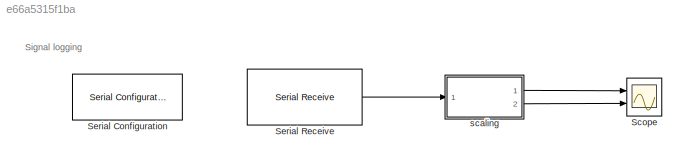
MODEL slx_e66a5315f1ba
KIND model
CONFIG AbsTol = auto
CONFIG EnableMultiTasking = on
CONFIG FixedStep = 1e-6
CONFIG MaxStep = auto
CONFIG MinStep = auto
CONFIG RelTol = 1e-3
CONFIG SampleTimeConstraint = Unconstrained
CONFIG Solver = FixedStepDiscrete
CONFIG SolverName = FixedStepDiscrete
CONFIG StartTime = 0.0
CONFIG StopTime = Inf
BLOCK [Scope] Scope
  DefaultConfigurationName = spbscopes.TimeScopeBlockCfg
  Floating = off
  NumInputPorts = 2
  Ports = [2]
  ScopeSpecificationString = spbscopes.TimeScopeBlockCfg('CurrentConfiguration', extmgr.ConfigurationSet(extmgr.Configuration('Core','General UI',true),extmgr.Configuration('Core','Source UI',true),extmgr.Configuration('Sources','WiredSimulink',true,'PointsPerSignal',1000000,'DataLoggingVariableName','ScopeData3'),extmgr.Configuration('Visuals','Time Domain',true,'DisplayLayoutDimensions',[2 1],'DisplayPropertyDefaults',struc...<+2141ch>
  UserDataPersistent = on
BLOCK [Reference] Serial Configuration  REF=instrumentlib/Serial Configuration
  Ports = []
  Priority = -200000
  SourceBlock = instrumentlib/Serial Configuration
  SourceProductBaseCode = IC
  SourceProductName = Instrument Control Toolbox
  SourceType = Serial Configuration
BLOCK [Reference] Serial Receive  REF=instrumentlib/Serial Receive
  Ports = [0, 1]
  SourceBlock = instrumentlib/Serial Receive
  SourceProductBaseCode = IC
  SourceProductName = Instrument Control Toolbox
  SourceType = Serial Receive
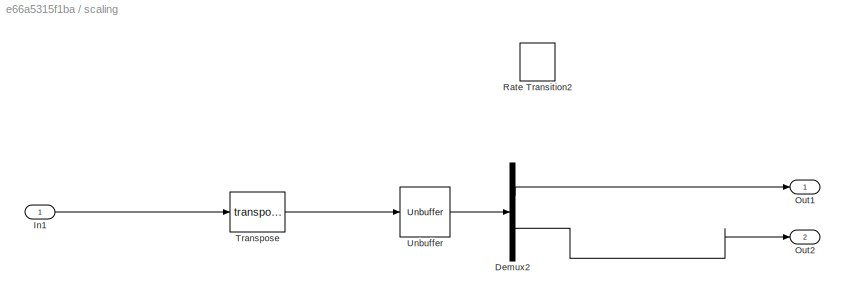
BLOCK [SubSystem] scaling
  Ports = [1, 2]
  RequestExecContextInheritance = off
BLOCK [Demux] scaling/Demux2
  DisplayOption = bar
  Outputs = 2
  Ports = [1, 2]
BLOCK [Inport] scaling/In1
  IconDisplay = Port number
BLOCK [Outport] scaling/Out1
  IconDisplay = Port number
  VectorParamsAs1DForOutWhenUnconnected = off
BLOCK [Outport] scaling/Out2
  IconDisplay = Port number
  Port = 2
  VectorParamsAs1DForOutWhenUnconnected = off
BLOCK [RateTransition] scaling/Rate Transition2
  AttributesFormatString = Ts = %<OutPortSampleTime>
BLOCK [Math] scaling/Transpose
  Operator = transpose
  Ports = [1, 1]
BLOCK [Unbuffer] scaling/Unbuffer
  Ports = [1, 1]
ANNOTATION (root): Signal logging
LINE Serial Receive:1 -> scaling:1
LINE scaling/Demux2:1 -> scaling/Out1:1
LINE scaling/Demux2:2 -> scaling/Out2:1
LINE scaling/In1:1 -> scaling/Transpose:1
LINE scaling/Transpose:1 -> scaling/Unbuffer:1
LINE scaling/Unbuffer:1 -> scaling/Demux2:1
LINE scaling:1 -> Scope:1
LINE scaling:2 -> Scope:2
